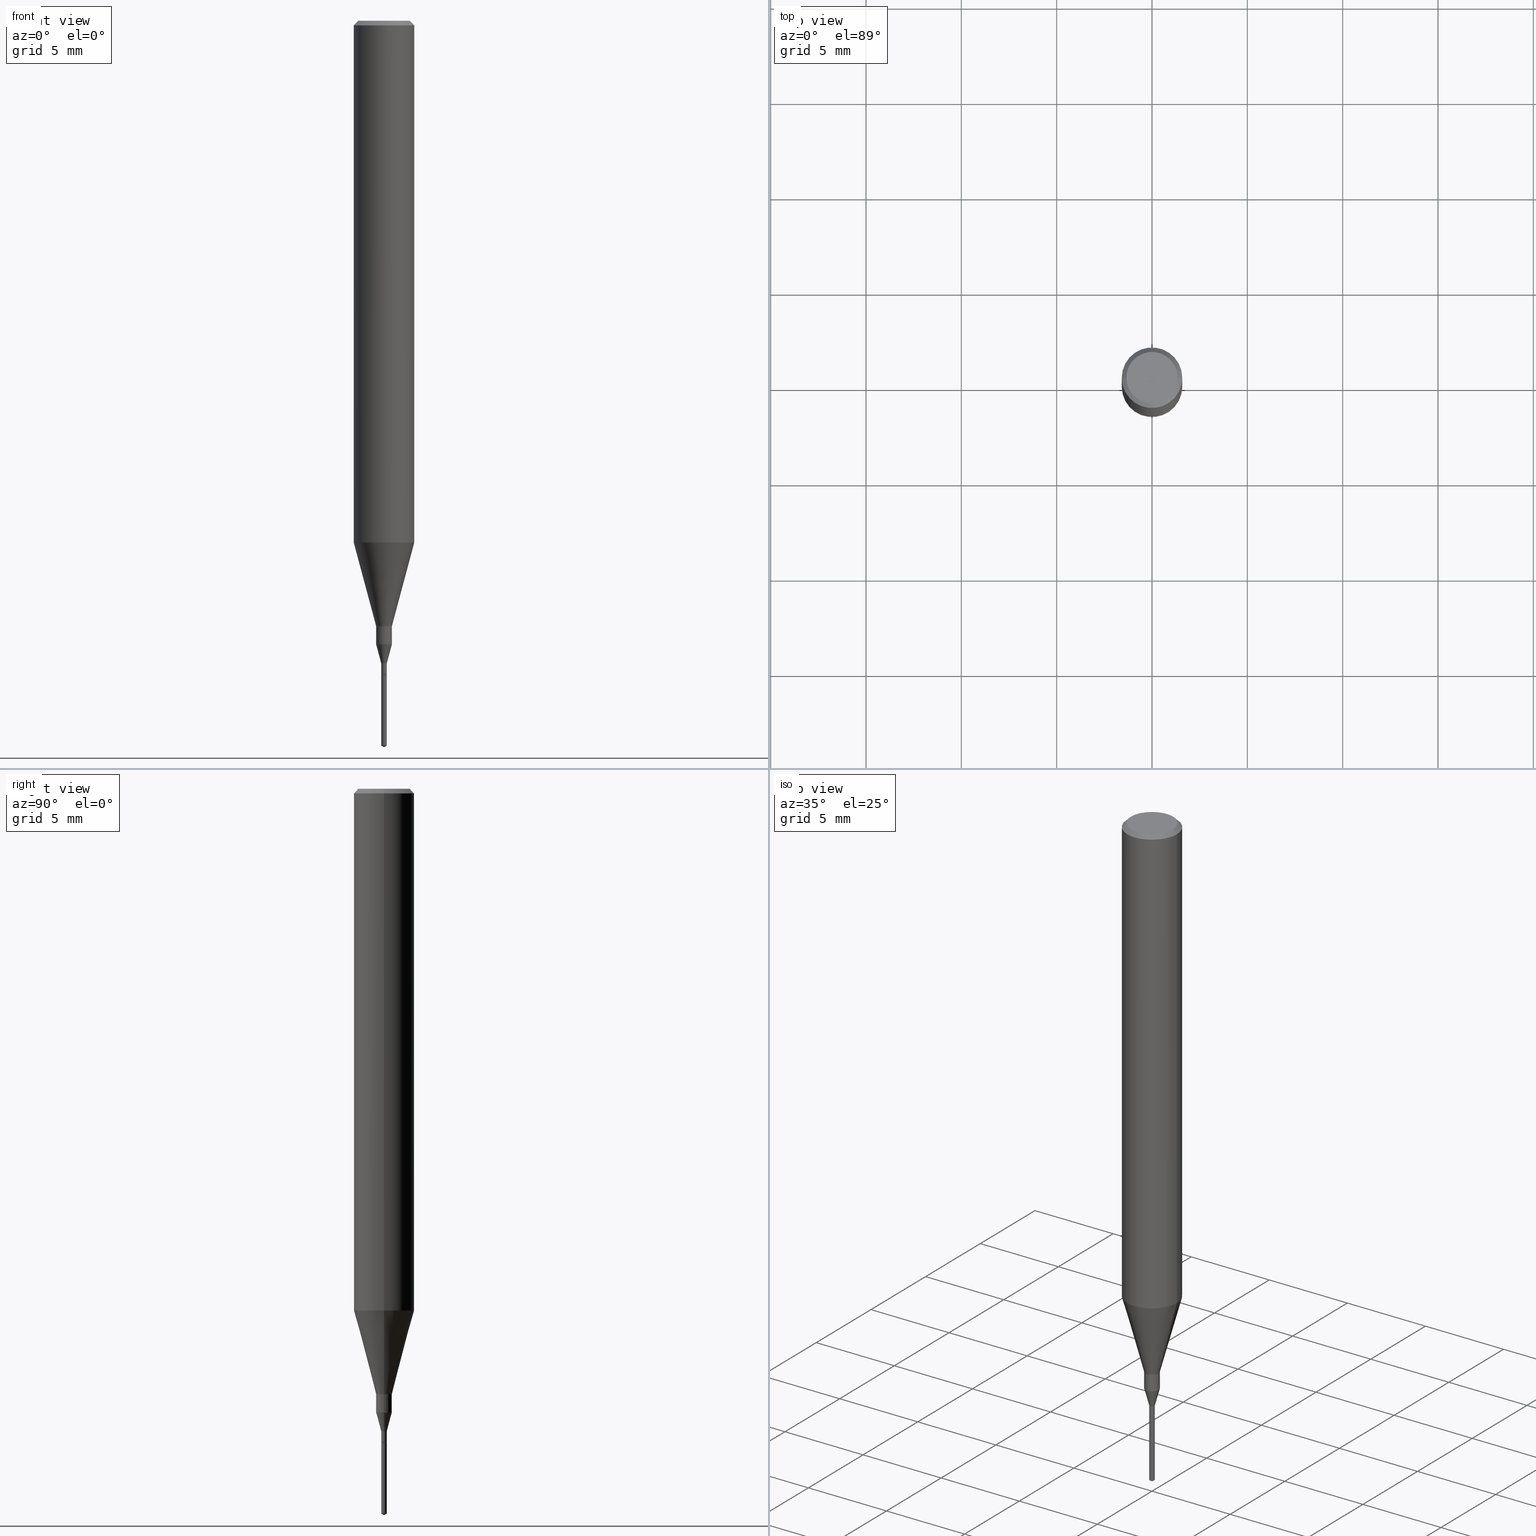
[diagram: canonical four-view strip — front | top / right | iso, engineering-drawing reading convention]
A machine part, canonical four-view strip (front | top / right | iso — engineering-drawing reading convention). The complete STEP part file that produces these views, byte-faithful:
ISO-10303-21;
HEADER;
FILE_DESCRIPTION (( 'STEP AP203' ),
    '1' );
FILE_NAME ('07264.STEP',
    '2024-04-19T13:30:32',
    ( '' ),
    ( '' ),
    'SwSTEP 2.0',
    'SolidWorks 2023',
    '' );
FILE_SCHEMA (( 'CONFIG_CONTROL_DESIGN' ));
ENDSEC;

DATA;
#1 = ORIENTED_EDGE ( 'NONE', *, *, #527, .F. ) ;
#2 = EDGE_CURVE ( 'NONE', #162, #6, #493, .T. ) ;
#3 = VERTEX_POINT ( 'NONE', #127 ) ;
#4 = ORIENTED_EDGE ( 'NONE', *, *, #167, .T. ) ;
#5 = CARTESIAN_POINT ( 'NONE',  ( 0.000000000000000000, 0.000000000000000000, 0.000000000000000000 ) ) ;
#6 = VERTEX_POINT ( 'NONE', #174 ) ;
#7 = AXIS2_PLACEMENT_3D ( 'NONE', #442, #207, #211 ) ;
#8 = ORIENTED_EDGE ( 'NONE', *, *, #316, .F. ) ;
#9 = CIRCLE ( 'NONE', #370, 0.06250000000000012490 ) ;
#10 = ORIENTED_EDGE ( 'NONE', *, *, #518, .T. ) ;
#11 = EDGE_CURVE ( 'NONE', #360, #513, #366, .T. ) ;
#12 = DIRECTION ( 'NONE',  ( -2.449828643397946418E-29, 3.485237803807878340E-15, 1.000000000000000000 ) ) ;
#13 = DIRECTION ( 'NONE',  ( -6.982962677686265133E-15, -1.000000000000000000, 0.000000000000000000 ) ) ;
#14 = ORIENTED_EDGE ( 'NONE', *, *, #11, .F. ) ;
#15 = LINE ( 'NONE', #55, #114 ) ;
#16 = CYLINDRICAL_SURFACE ( 'NONE', #485, 0.005750000000000004240 ) ;
#17 = AXIS2_PLACEMENT_3D ( 'NONE', #102, #12, #182 ) ;
#18 = VECTOR ( 'NONE', #330, 39.37007874015748143 ) ;
#19 = VERTEX_POINT ( 'NONE', #86 ) ;
#20 = DIRECTION ( 'NONE',  ( -2.449828643397946418E-29, 3.485237803807878340E-15, 1.000000000000000000 ) ) ;
#21 = EDGE_CURVE ( 'NONE', #88, #410, #15, .T. ) ;
#22 = PERSON_AND_ORGANIZATION_ROLE ( 'design_supplier' ) ;
#23 = CC_DESIGN_PERSON_AND_ORGANIZATION_ASSIGNMENT ( #563, #144, ( #409 ) ) ;
#24 = EDGE_CURVE ( 'NONE', #38, #53, #143, .T. ) ;
#25 = CALENDAR_DATE ( 2024, 19, 4 ) ;
#26 = ORIENTED_EDGE ( 'NONE', *, *, #24, .T. ) ;
#27 = DIRECTION ( 'NONE',  ( 0.2588190451025214611, 1.565188264969621573E-15, 0.9659258262890682012 ) ) ;
#28 = DIRECTION ( 'NONE',  ( -1.000000000000000000, 6.982962677686266711E-15, 0.000000000000000000 ) ) ;
#29 = CARTESIAN_POINT ( 'NONE',  ( 0.01624999999999999709, -1.134731435124018242E-16, 7.923787260668394963E-31 ) ) ;
#30 = VECTOR ( 'NONE', #577, 39.37007874015748143 ) ;
#31 = EDGE_LOOP ( 'NONE', ( #84, #100, #153, #91 ) ) ;
#32 = AXIS2_PLACEMENT_3D ( 'NONE', #96, #180, #139 ) ;
#33 = AXIS2_PLACEMENT_3D ( 'NONE', #313, #79, #450 ) ;
#34 = CARTESIAN_POINT ( 'NONE',  ( 3.301382888349935078E-29, -4.713499807438246596E-15, -1.350000000000000089 ) ) ;
#35 = ORIENTED_EDGE ( 'NONE', *, *, #24, .F. ) ;
#36 = ORIENTED_EDGE ( 'NONE', *, *, #328, .T. ) ;
#37 = DIRECTION ( 'NONE',  ( -2.445468806185136597E-29, 3.491481338843145583E-15, 1.000000000000000000 ) ) ;
#38 = VERTEX_POINT ( 'NONE', #189 ) ;
#39 = LOCAL_TIME ( 9, 30, 32.00000000000000000, #185 ) ;
#40 = CARTESIAN_POINT ( 'NONE',  ( -0.06250000000000000000, 4.037025298037369984E-16, -0.009375000000000063838 ) ) ;
#41 = ADVANCED_FACE ( 'NONE', ( #514 ), #546, .T. ) ;
#42 = EDGE_LOOP ( 'NONE', ( #415, #538, #220, #416 ) ) ;
#43 = LOCAL_TIME ( 9, 30, 32.00000000000000000, #282 ) ;
#44 = ORIENTED_EDGE ( 'NONE', *, *, #95, .F. ) ;
#45 = CARTESIAN_POINT ( 'NONE',  ( 0.005249999999999999459, -4.750160361496099748E-15, -1.350000000000000089 ) ) ;
#46 = DIRECTION ( 'NONE',  ( -2.445468806185136597E-29, 3.491481338843145583E-15, 1.000000000000000000 ) ) ;
#47 = EDGE_CURVE ( 'NONE', #19, #323, #570, .T. ) ;
#48 = VERTEX_POINT ( 'NONE', #235 ) ;
#49 = FACE_OUTER_BOUND ( 'NONE', #51, .T. ) ;
#50 = ORIENTED_EDGE ( 'NONE', *, *, #506, .T. ) ;
#51 = EDGE_LOOP ( 'NONE', ( #368, #149, #136, #376 ) ) ;
#52 = DIRECTION ( 'NONE',  ( -2.445468806185136597E-29, 3.491481338843145583E-15, 1.000000000000000000 ) ) ;
#53 = VERTEX_POINT ( 'NONE', #556 ) ;
#54 = ADVANCED_FACE ( 'NONE', ( #425 ), #561, .T. ) ;
#55 = CARTESIAN_POINT ( 'NONE',  ( -0.01625000000000000056, -4.380913491706305930E-15, -1.287813466520526973 ) ) ;
#56 = DIRECTION ( 'NONE',  ( -0.7071067811866251773, 7.493145998870633417E-15, 0.7071067811864697461 ) ) ;
#57 = DIRECTION ( 'NONE',  ( -2.445468806185136597E-29, 3.491481338843145583E-15, 1.000000000000000000 ) ) ;
#58 = ORIENTED_EDGE ( 'NONE', *, *, #319, .T. ) ;
#59 = CARTESIAN_POINT ( 'NONE',  ( -9.278108940561071411E-28, 1.319778012860802633E-13, 37.87007874015748143 ) ) ;
#60 = DATE_TIME_ROLE ( 'classification_date' ) ;
#61 = EDGE_CURVE ( 'NONE', #410, #48, #551, .T. ) ;
#62 = AXIS2_PLACEMENT_3D ( 'NONE', #267, #540, #28 ) ;
#63 = AXIS2_PLACEMENT_3D ( 'NONE', #476, #383, #521 ) ;
#64 = FACE_OUTER_BOUND ( 'NONE', #276, .T. ) ;
#65 = AXIS2_PLACEMENT_3D ( 'NONE', #140, #497, #83 ) ;
#66 = DIRECTION ( 'NONE',  ( -2.445468806185136597E-29, 3.491481338843145583E-15, 1.000000000000000000 ) ) ;
#67 = PERSON_AND_ORGANIZATION ( #200, #349 ) ;
#68 = CARTESIAN_POINT ( 'NONE',  ( 0.000000000000000000, 0.000000000000000000, 0.000000000000000000 ) ) ;
#69 = ORIENTED_EDGE ( 'NONE', *, *, #195, .F. ) ;
#70 = CC_DESIGN_PERSON_AND_ORGANIZATION_ASSIGNMENT ( #548, #22, ( #533 ) ) ;
#71 = DATE_AND_TIME ( #25, #39 ) ;
#72 = CARTESIAN_POINT ( 'NONE',  ( 3.301382888349935078E-29, -4.713499807438246596E-15, -1.350000000000000089 ) ) ;
#73 = ORIENTED_EDGE ( 'NONE', *, *, #467, .T. ) ;
#74 = DIRECTION ( 'NONE',  ( -6.982962677686266711E-15, -1.000000000000000000, 3.468864327941709388E-15 ) ) ;
#75 = ORIENTED_EDGE ( 'NONE', *, *, #141, .F. ) ;
#76 = AXIS2_PLACEMENT_3D ( 'NONE', #292, #108, #392 ) ;
#77 = ORIENTED_EDGE ( 'NONE', *, *, #295, .F. ) ;
#78 = CARTESIAN_POINT ( 'NONE',  ( -0.06250000000000006939, 4.440892098500631092E-16, -3.074334431409319267E-30 ) ) ;
#79 = DIRECTION ( 'NONE',  ( -2.445468806185136597E-29, 3.491481338843145583E-15, 1.000000000000000000 ) ) ;
#80 = DIRECTION ( 'NONE',  ( 1.000000000000000000, -6.982962677686205968E-15, 0.000000000000000000 ) ) ;
#81 = ADVANCED_FACE ( 'NONE', ( #287 ), #503, .T. ) ;
#82 = ORIENTED_EDGE ( 'NONE', *, *, #150, .T. ) ;
#83 = DIRECTION ( 'NONE',  ( 1.000000000000000000, -6.982962677686195713E-15, 0.000000000000000000 ) ) ;
#84 = ORIENTED_EDGE ( 'NONE', *, *, #2, .F. ) ;
#85 = DIRECTION ( 'NONE',  ( -2.445468806185136597E-29, 3.491481338843145583E-15, 1.000000000000000000 ) ) ;
#86 = CARTESIAN_POINT ( 'NONE',  ( -0.05312499999999999861, 3.873362110279099094E-16, -5.787680772773044021E-18 ) ) ;
#87 = VECTOR ( 'NONE', #541, 39.37007874015748143 ) ;
#88 = VERTEX_POINT ( 'NONE', #472 ) ;
#89 = ADVANCED_FACE ( 'NONE', ( #49 ), #239, .T. ) ;
#90 = ORIENTED_EDGE ( 'NONE', *, *, #580, .T. ) ;
#91 = ORIENTED_EDGE ( 'NONE', *, *, #432, .F. ) ;
#92 = VECTOR ( 'NONE', #545, 39.37007874015748143 ) ;
#93 = SECURITY_CLASSIFICATION_LEVEL ( 'unclassified' ) ;
#94 = APPROVAL ( #226, 'UNSPECIFIED' ) ;
#95 = EDGE_CURVE ( 'NONE', #38, #358, #147, .T. ) ;
#96 = CARTESIAN_POINT ( 'NONE',  ( 2.292627005798581061E-31, -3.273263755165471417E-17, -0.009375000000000063838 ) ) ;
#97 = CALENDAR_DATE ( 2024, 19, 4 ) ;
#98 = DIRECTION ( 'NONE',  ( 1.000000000000000000, -6.982962677686267499E-15, 4.876176775795936353E-29 ) ) ;
#99 = CIRCLE ( 'NONE', #520, 0.01624999999999999709 ) ;
#100 = ORIENTED_EDGE ( 'NONE', *, *, #295, .T. ) ;
#101 = AXIS2_PLACEMENT_3D ( 'NONE', #261, #219, #344 ) ;
#102 = CARTESIAN_POINT ( 'NONE',  ( 3.301382888349935078E-29, -4.713499807438246596E-15, -1.350000000000000089 ) ) ;
#103 = EDGE_CURVE ( 'NONE', #3, #583, #113, .T. ) ;
#104 = UNCERTAINTY_MEASURE_WITH_UNIT (LENGTH_MEASURE( 1.000000000000000082E-05 ), #353, 'distance_accuracy_value', 'NONE');
#105 = VECTOR ( 'NONE', #230, 39.37007874015748854 ) ;
#106 = ADVANCED_FACE ( 'NONE', ( #378 ), #559, .T. ) ;
#107 = AXIS2_PLACEMENT_3D ( 'NONE', #59, #567, #285 ) ;
#108 = DIRECTION ( 'NONE',  ( -2.445468806185136597E-29, 3.491481338843145583E-15, 1.000000000000000000 ) ) ;
#109 = DIRECTION ( 'NONE',  ( 1.000000000000000000, -6.982962677686264344E-15, 0.000000000000000000 ) ) ;
#110 = ORIENTED_EDGE ( 'NONE', *, *, #316, .T. ) ;
#111 = DIRECTION ( 'NONE',  ( -2.449828643397946418E-29, 3.485237803807878340E-15, 1.000000000000000000 ) ) ;
#112 = APPLICATION_PROTOCOL_DEFINITION ( 'international standard', 'config_control_design', 1994, #492 ) ;
#113 = CIRCLE ( 'NONE', #17, 0.005749999999999999903 ) ;
#114 = VECTOR ( 'NONE', #197, 39.37007874015748143 ) ;
#115 = CALENDAR_DATE ( 2024, 19, 4 ) ;
#116 = ORIENTED_EDGE ( 'NONE', *, *, #411, .F. ) ;
#117 = DIRECTION ( 'NONE',  ( 0.000000000000000000, 0.000000000000000000, 1.000000000000000000 ) ) ;
#118 = ADVANCED_FACE ( 'NONE', ( #210 ), #479, .T. ) ;
#119 = DIRECTION ( 'NONE',  ( -2.445468806185136597E-29, 3.491481338843145583E-15, 1.000000000000000000 ) ) ;
#120 = AXIS2_PLACEMENT_3D ( 'NONE', #163, #217, #80 ) ;
#121 = CARTESIAN_POINT ( 'NONE',  ( -4.015203539666301532E-17, -0.005750000000004714014, -1.350000000000000089 ) ) ;
#122 = DIRECTION ( 'NONE',  ( 1.000000000000000000, -6.982962677686266711E-15, 4.876176775795935793E-29 ) ) ;
#123 = AXIS2_PLACEMENT_3D ( 'NONE', #465, #387, #246 ) ;
#124 = APPROVAL_DATE_TIME ( #484, #542 ) ;
#125 = ADVANCED_FACE ( 'NONE', ( #345 ), #443, .T. ) ;
#126 = CARTESIAN_POINT ( 'NONE',  ( 0.01625000000000000056, -4.609849829779723792E-15, -1.287813466520526973 ) ) ;
#127 = CARTESIAN_POINT ( 'NONE',  ( 4.085620730624237424E-17, 0.005749999999995286659, -1.350000000000000089 ) ) ;
#128 = ORIENTED_EDGE ( 'NONE', *, *, #449, .F. ) ;
#129 = LINE ( 'NONE', #298, #335 ) ;
#130 = AXIS2_PLACEMENT_3D ( 'NONE', #305, #406, #584 ) ;
#131 = CARTESIAN_POINT ( 'NONE',  ( 0.01625000000000000056, -4.609849829779723792E-15, -1.287813466520526973 ) ) ;
#132 = CARTESIAN_POINT ( 'NONE',  ( 3.660393152917320875E-29, -5.224244160679966453E-15, -1.496545051440591578 ) ) ;
#133 = ORIENTED_EDGE ( 'NONE', *, *, #489, .F. ) ;
#134 = FACE_OUTER_BOUND ( 'NONE', #315, .T. ) ;
#135 = AXIS2_PLACEMENT_3D ( 'NONE', #579, #37, #494 ) ;
#136 = ORIENTED_EDGE ( 'NONE', *, *, #205, .F. ) ;
#137 = CARTESIAN_POINT ( 'NONE',  ( -0.01624999999999999709, 1.154631945610162595E-16, -7.993269521664220284E-31 ) ) ;
#138 = CIRCLE ( 'NONE', #101, 0.005749999999999999035 ) ;
#139 = DIRECTION ( 'NONE',  ( -1.000000000000000000, 6.982962677686266711E-15, 0.000000000000000000 ) ) ;
#140 = CARTESIAN_POINT ( 'NONE',  ( 3.300160153946842277E-29, -4.711754066768825092E-15, -1.349500000000000144 ) ) ;
#141 = EDGE_CURVE ( 'NONE', #513, #410, #454, .T. ) ;
#142 = EDGE_LOOP ( 'NONE', ( #128, #50, #82, #317 ) ) ;
#143 = LINE ( 'NONE', #248, #562 ) ;
#144 = PERSON_AND_ORGANIZATION_ROLE ( 'creator' ) ;
#145 = CIRCLE ( 'NONE', #565, 0.06250000000000012490 ) ;
#146 = CARTESIAN_POINT ( 'NONE',  ( 2.634730117954813298E-29, -3.761696332605275695E-15, -1.077392650149939346 ) ) ;
#147 = LINE ( 'NONE', #519, #501 ) ;
#148 = CIRCLE ( 'NONE', #310, 0.01625000000000000056 ) ;
#149 = ORIENTED_EDGE ( 'NONE', *, *, #237, .T. ) ;
#150 = EDGE_CURVE ( 'NONE', #193, #364, #234, .T. ) ;
#151 = CARTESIAN_POINT ( 'NONE',  ( -0.005249999999999999459, -4.676196313810840711E-15, -1.350000000000000089 ) ) ;
#152 = PRODUCT ( '07264', '07264', '', ( #303 ) ) ;
#153 = ORIENTED_EDGE ( 'NONE', *, *, #489, .T. ) ;
#154 = CONICAL_SURFACE ( 'NONE', #238, 0.01625000000000000056, 0.2617993877991522944 ) ;
#155 = DIRECTION ( 'NONE',  ( 1.000000000000000000, -6.982962677686266711E-15, 0.000000000000000000 ) ) ;
#156 = CARTESIAN_POINT ( 'NONE',  ( -0.005750000000000008576, -4.670897859462619098E-15, -1.349500000000000144 ) ) ;
#157 = CC_DESIGN_DATE_AND_TIME_ASSIGNMENT ( #71, #60, ( #554 ) ) ;
#158 = ORIENTED_EDGE ( 'NONE', *, *, #11, .T. ) ;
#159 = CARTESIAN_POINT ( 'NONE',  ( 3.149307660561095613E-29, -4.496376686267322115E-15, -1.287813466520526973 ) ) ;
#160 = FACE_OUTER_BOUND ( 'NONE', #268, .T. ) ;
#161 = DIRECTION ( 'NONE',  ( -2.445468806185136597E-29, 3.491481338843145583E-15, 1.000000000000000000 ) ) ;
#162 = VERTEX_POINT ( 'NONE', #178 ) ;
#163 = CARTESIAN_POINT ( 'NONE',  ( 3.245137105807676300E-29, -4.633195736644853487E-15, -1.326999999999999735 ) ) ;
#164 = LOCAL_TIME ( 9, 30, 32.00000000000000000, #557 ) ;
#165 = EDGE_CURVE ( 'NONE', #48, #547, #560, .T. ) ;
#166 = CARTESIAN_POINT ( 'NONE',  ( 3.301382888349935078E-29, -4.713499807438246596E-15, -1.350000000000000089 ) ) ;
#167 = EDGE_CURVE ( 'NONE', #544, #364, #481, .T. ) ;
#168 = ORIENTED_EDGE ( 'NONE', *, *, #279, .F. ) ;
#169 = FACE_OUTER_BOUND ( 'NONE', #228, .T. ) ;
#170 = ORIENTED_EDGE ( 'NONE', *, *, #237, .F. ) ;
#171 = CC_DESIGN_SECURITY_CLASSIFICATION ( #554, ( #533 ) ) ;
#172 = AXIS2_PLACEMENT_3D ( 'NONE', #543, #227, #505 ) ;
#173 = EDGE_LOOP ( 'NONE', ( #535, #4, #36, #283 ) ) ;
#174 = CARTESIAN_POINT ( 'NONE',  ( -0.06250000000000000000, -1.453125275228401137E-15, -0.009375000000000063838 ) ) ;
#175 = DIRECTION ( 'NONE',  ( 1.000000000000000000, -6.982962677686205968E-15, 0.000000000000000000 ) ) ;
#176 = ADVANCED_FACE ( 'NONE', ( #549 ), #281, .F. ) ;
#177 = AXIS2_PLACEMENT_3D ( 'NONE', #581, #161, #175 ) ;
#178 = CARTESIAN_POINT ( 'NONE',  ( -0.06250000000000012490, -3.317607122755211895E-15, -1.077392650149939346 ) ) ;
#179 = CIRCLE ( 'NONE', #76, 0.06250000000000000000 ) ;
#180 = DIRECTION ( 'NONE',  ( 2.445468806185136597E-29, -3.491481338843145583E-15, -1.000000000000000000 ) ) ;
#181 = PRODUCT_RELATED_PRODUCT_CATEGORY ( 'detail', '', ( #152 ) ) ;
#182 = DIRECTION ( 'NONE',  ( -6.982962677686265133E-15, -1.000000000000000000, 0.000000000000000000 ) ) ;
#183 = EDGE_CURVE ( 'NONE', #358, #53, #223, .T. ) ;
#184 = APPROVAL_PERSON_ORGANIZATION ( #523, #542, #397 ) ;
#185 = COORDINATED_UNIVERSAL_TIME_OFFSET ( 5, 0, .BEHIND. ) ;
#186 = ORIENTED_EDGE ( 'NONE', *, *, #467, .F. ) ;
#187 = AXIS2_PLACEMENT_3D ( 'NONE', #284, #571, #340 ) ;
#188 = AXIS2_PLACEMENT_3D ( 'NONE', #72, #119, #307 ) ;
#189 = CARTESIAN_POINT ( 'NONE',  ( 3.674742965096920047E-29, -5.227856705711817904E-15, -1.500000000000000222 ) ) ;
#190 = AXIS2_PLACEMENT_3D ( 'NONE', #166, #529, #539 ) ;
#191 = CYLINDRICAL_SURFACE ( 'NONE', #388, 0.01624999999999999709 ) ;
#192 = CALENDAR_DATE ( 2024, 19, 4 ) ;
#193 = VERTEX_POINT ( 'NONE', #379 ) ;
#194 = DIRECTION ( 'NONE',  ( -6.982962677686265133E-15, -1.000000000000000000, 0.000000000000000000 ) ) ;
#195 = EDGE_CURVE ( 'NONE', #364, #544, #255, .T. ) ;
#196 = DIRECTION ( 'NONE',  ( 1.000000000000000000, -6.982962677686267499E-15, 4.876176775795935793E-29 ) ) ;
#197 = DIRECTION ( 'NONE',  ( -0.2588190451025235150, 5.211531920934562875E-15, 0.9659258262890674240 ) ) ;
#198 = DIRECTION ( 'NONE',  ( -2.445468806185136597E-29, 3.491481338843145583E-15, 1.000000000000000000 ) ) ;
#199 = VECTOR ( 'NONE', #56, 39.37007874015748854 ) ;
#200 = PERSON ( 'UNSPECIFIED', 'UNSPECIFIED', 'UNSPECIFIED', ('UNSPECIFIED'), ('UNSPECIFIED'), ('UNSPECIFIED') ) ;
#201 = DIRECTION ( 'NONE',  ( -2.445468806185136597E-29, 3.491481338843145583E-15, 1.000000000000000000 ) ) ;
#202 = DIRECTION ( 'NONE',  ( -2.449828643397946418E-29, 3.485237803807878340E-15, 1.000000000000000000 ) ) ;
#203 = ADVANCED_FACE ( 'NONE', ( #271 ), #478, .T. ) ;
#204 = APPROVAL_STATUS ( 'not_yet_approved' ) ;
#205 = EDGE_CURVE ( 'NONE', #583, #3, #296, .T. ) ;
#206 = ORIENTED_EDGE ( 'NONE', *, *, #21, .F. ) ;
#207 = DIRECTION ( 'NONE',  ( -2.438088387897960049E-29, 3.491481338843145188E-15, 1.000000000000000000 ) ) ;
#208 = PERSON_AND_ORGANIZATION ( #200, #349 ) ;
#209 = CARTESIAN_POINT ( 'NONE',  ( -0.01625000000000000056, -4.380913491706305930E-15, -1.287813466520526973 ) ) ;
#210 = FACE_OUTER_BOUND ( 'NONE', #389, .T. ) ;
#211 = DIRECTION ( 'NONE',  ( 1.000000000000000000, -6.982962677686265922E-15, 4.876176775795935793E-29 ) ) ;
#212 = EDGE_LOOP ( 'NONE', ( #286, #590, #456, #270 ) ) ;
#213 = CARTESIAN_POINT ( 'NONE',  ( -4.015203539665941614E-17, -0.005750000000005222288, -1.496545051440591578 ) ) ;
#214 = EDGE_CURVE ( 'NONE', #323, #550, #338, .T. ) ;
#215 = FACE_OUTER_BOUND ( 'NONE', #587, .T. ) ;
#216 = ORIENTED_EDGE ( 'NONE', *, *, #256, .F. ) ;
#217 = DIRECTION ( 'NONE',  ( -2.445468806185136597E-29, 3.491481338843145583E-15, 1.000000000000000000 ) ) ;
#218 = ORIENTED_EDGE ( 'NONE', *, *, #372, .T. ) ;
#219 = DIRECTION ( 'NONE',  ( -2.449828643397946418E-29, 3.485237803807878340E-15, 1.000000000000000000 ) ) ;
#220 = ORIENTED_EDGE ( 'NONE', *, *, #532, .T. ) ;
#221 = AXIS2_PLACEMENT_3D ( 'NONE', #477, #202, #74 ) ;
#222 = LOCAL_TIME ( 9, 30, 32.00000000000000000, #572 ) ;
#223 = CIRCLE ( 'NONE', #300, 0.005749999999999999035 ) ;
#224 = CC_DESIGN_PERSON_AND_ORGANIZATION_ASSIGNMENT ( #208, #299, ( #152 ) ) ;
#225 = CIRCLE ( 'NONE', #304, 0.005249999999999999459 ) ;
#226 = APPROVAL_STATUS ( 'not_yet_approved' ) ;
#227 = DIRECTION ( 'NONE',  ( 2.438088387897960049E-29, -3.491481338843145188E-15, -1.000000000000000000 ) ) ;
#228 = EDGE_LOOP ( 'NONE', ( #1, #380, #110, #77 ) ) ;
#229 = LINE ( 'NONE', #309, #320 ) ;
#230 = DIRECTION ( 'NONE',  ( 0.7071067811866251773, -2.468850131083070771E-15, 0.7071067811864697461 ) ) ;
#231 = AXIS2_PLACEMENT_3D ( 'NONE', #68, #318, #122 ) ;
#232 = CARTESIAN_POINT ( 'NONE',  ( 3.300160153946842277E-29, -4.711754066768825092E-15, -1.349500000000000144 ) ) ;
#233 = ORIENTED_EDGE ( 'NONE', *, *, #214, .T. ) ;
#234 = LINE ( 'NONE', #45, #105 ) ;
#235 = CARTESIAN_POINT ( 'NONE',  ( -0.01624999999999999709, -4.314900985349611108E-15, -1.250000000000000000 ) ) ;
#236 = AXIS2_PLACEMENT_3D ( 'NONE', #351, #117, #259 ) ;
#237 = EDGE_CURVE ( 'NONE', #53, #3, #346, .T. ) ;
#238 = AXIS2_PLACEMENT_3D ( 'NONE', #511, #201, #390 ) ;
#239 = CYLINDRICAL_SURFACE ( 'NONE', #253, 0.005749999999999999903 ) ;
#240 = DIRECTION ( 'NONE',  ( -2.449828643397946418E-29, 3.485237803807878340E-15, 1.000000000000000000 ) ) ;
#241 = ORIENTED_EDGE ( 'NONE', *, *, #459, .T. ) ;
#242 = PERSON_AND_ORGANIZATION ( #200, #349 ) ;
#243 = DIRECTION ( 'NONE',  ( -2.445468806185136597E-29, 3.491481338843145583E-15, 1.000000000000000000 ) ) ;
#244 = EDGE_LOOP ( 'NONE', ( #206, #218, #158, #168 ) ) ;
#245 = AXIS2_PLACEMENT_3D ( 'NONE', #5, #405, #258 ) ;
#246 = DIRECTION ( 'NONE',  ( -6.982962677686265133E-15, -1.000000000000000000, 0.000000000000000000 ) ) ;
#247 = ORIENTED_EDGE ( 'NONE', *, *, #95, .T. ) ;
#248 = CARTESIAN_POINT ( 'NONE',  ( 3.674846187787069844E-29, -5.227856705711817904E-15, -1.500000000000000222 ) ) ;
#249 = DESIGN_CONTEXT ( 'detailed design', #363, 'design' ) ;
#250 = DATE_AND_TIME ( #192, #43 ) ;
#251 = DIRECTION ( 'NONE',  ( 1.000000000000000000, -6.982962677686264344E-15, 0.000000000000000000 ) ) ;
#252 = FACE_OUTER_BOUND ( 'NONE', #446, .T. ) ;
#253 = AXIS2_PLACEMENT_3D ( 'NONE', #430, #20, #194 ) ;
#254 = LINE ( 'NONE', #151, #199 ) ;
#255 = CIRCLE ( 'NONE', #65, 0.005750000000000008576 ) ;
#256 = EDGE_CURVE ( 'NONE', #547, #48, #99, .T. ) ;
#257 = APPROVAL_PERSON_ORGANIZATION ( #67, #526, #359 ) ;
#258 = DIRECTION ( 'NONE',  ( 1.000000000000000000, -6.982962677686266711E-15, 4.876176775795935793E-29 ) ) ;
#259 = DIRECTION ( 'NONE',  ( 1.000000000000000000, 0.000000000000000000, 0.000000000000000000 ) ) ;
#260 = CARTESIAN_POINT ( 'NONE',  ( 4.085620730623876890E-17, 0.005749999999995286659, -1.350000000000000089 ) ) ;
#261 = CARTESIAN_POINT ( 'NONE',  ( 3.660393152917320875E-29, -5.224244160679966453E-15, -1.496545051440591578 ) ) ;
#262 = CIRCLE ( 'NONE', #120, 0.005749999999999999903 ) ;
#263 = CARTESIAN_POINT ( 'NONE',  ( 0.06250000000000000000, -4.615137624123753937E-16, -0.009375000000000063838 ) ) ;
#264 = ADVANCED_FACE ( 'NONE', ( #134 ), #480, .F. ) ;
#265 = LINE ( 'NONE', #40, #394 ) ;
#266 = CC_DESIGN_PERSON_AND_ORGANIZATION_ASSIGNMENT ( #280, #466, ( #554 ) ) ;
#267 = CARTESIAN_POINT ( 'NONE',  ( 2.292627005798581061E-31, -3.273263755165471417E-17, -0.009375000000000063838 ) ) ;
#268 = EDGE_LOOP ( 'NONE', ( #241, #382, #354, #133 ) ) ;
#269 = DIRECTION ( 'NONE',  ( -0.7071067811865454633, 2.468850131082235367E-15, -0.7071067811865495711 ) ) ;
#270 = ORIENTED_EDGE ( 'NONE', *, *, #328, .F. ) ;
#271 = FACE_OUTER_BOUND ( 'NONE', #142, .T. ) ;
#272 = EDGE_CURVE ( 'NONE', #544, #88, #129, .T. ) ;
#273 = ORIENTED_EDGE ( 'NONE', *, *, #527, .T. ) ;
#274 = AXIS2_PLACEMENT_3D ( 'NONE', #333, #377, #509 ) ;
#275 = CARTESIAN_POINT ( 'NONE',  ( 0.05312499999999999861, -4.129888592719939842E-16, -5.787680772767651417E-18 ) ) ;
#276 = EDGE_LOOP ( 'NONE', ( #35, #247, #537 ) ) ;
#277 = CALENDAR_DATE ( 2024, 19, 4 ) ;
#278 = ORIENTED_EDGE ( 'NONE', *, *, #183, .F. ) ;
#279 = EDGE_CURVE ( 'NONE', #410, #513, #148, .T. ) ;
#280 = PERSON_AND_ORGANIZATION ( #200, #349 ) ;
#281 = PLANE ( 'NONE',  #172 ) ;
#282 = COORDINATED_UNIVERSAL_TIME_OFFSET ( 5, 0, .BEHIND. ) ;
#283 = ORIENTED_EDGE ( 'NONE', *, *, #372, .F. ) ;
#284 = CARTESIAN_POINT ( 'NONE',  ( 3.301382888349935078E-29, -4.713499807438246596E-15, -1.350000000000000089 ) ) ;
#285 = DIRECTION ( 'NONE',  ( -6.982962677686266711E-15, -1.000000000000000000, 3.468864327941709388E-15 ) ) ;
#286 = ORIENTED_EDGE ( 'NONE', *, *, #195, .T. ) ;
#287 = FACE_OUTER_BOUND ( 'NONE', #361, .T. ) ;
#288 = DATE_AND_TIME ( #97, #337 ) ;
#289 = FACE_OUTER_BOUND ( 'NONE', #461, .T. ) ;
#290 = VECTOR ( 'NONE', #451, 39.37007874015747433 ) ;
#291 = CC_DESIGN_APPROVAL ( #542, ( #554 ) ) ;
#292 = CARTESIAN_POINT ( 'NONE',  ( 2.292627005798581061E-31, -3.273263755165471417E-17, -0.009375000000000063838 ) ) ;
#293 = FACE_OUTER_BOUND ( 'NONE', #212, .T. ) ;
#294 = CC_DESIGN_DATE_AND_TIME_ASSIGNMENT ( #250, #391, ( #409 ) ) ;
#295 = EDGE_CURVE ( 'NONE', #162, #463, #9, .T. ) ;
#296 = CIRCLE ( 'NONE', #63, 0.005749999999999999903 ) ;
#297 = VECTOR ( 'NONE', #111, 39.37007874015748143 ) ;
#298 = CARTESIAN_POINT ( 'NONE',  ( -0.005750000000000004240, 4.085620730620579081E-17, -2.828387676896572552E-31 ) ) ;
#299 = PERSON_AND_ORGANIZATION_ROLE ( 'design_owner' ) ;
#300 = AXIS2_PLACEMENT_3D ( 'NONE', #132, #240, #13 ) ;
#301 = CC_DESIGN_APPROVAL ( #526, ( #409 ) ) ;
#302 = DIRECTION ( 'NONE',  ( -2.445468806185136597E-29, 3.491481338843145583E-15, 1.000000000000000000 ) ) ;
#303 = MECHANICAL_CONTEXT ( 'NONE', #492, 'mechanical' ) ;
#304 = AXIS2_PLACEMENT_3D ( 'NONE', #336, #243, #398 ) ;
#305 = CARTESIAN_POINT ( 'NONE',  ( 2.634730117954813298E-29, -3.761696332605275695E-15, -1.077392650149939346 ) ) ;
#306 = ADVANCED_FACE ( 'NONE', ( #160 ), #322, .T. ) ;
#307 = DIRECTION ( 'NONE',  ( 1.000000000000000000, -6.982962677686287221E-15, 0.000000000000000000 ) ) ;
#308 = ORIENTED_EDGE ( 'NONE', *, *, #103, .T. ) ;
#309 = CARTESIAN_POINT ( 'NONE',  ( -4.015203539666301532E-17, -0.005750000000004714014, -1.350000000000000089 ) ) ;
#310 = AXIS2_PLACEMENT_3D ( 'NONE', #403, #85, #324 ) ;
#311 = VECTOR ( 'NONE', #400, 39.37007874015748143 ) ;
#312 = SHAPE_DEFINITION_REPRESENTATION ( #342, #434 ) ;
#313 = CARTESIAN_POINT ( 'NONE',  ( 3.149307660561095613E-29, -4.496376686267322115E-15, -1.287813466520526973 ) ) ;
#314 = APPLICATION_PROTOCOL_DEFINITION ( 'international standard', 'config_control_design', 1994, #363 ) ;
#315 = EDGE_LOOP ( 'NONE', ( #186, #455 ) ) ;
#316 = EDGE_CURVE ( 'NONE', #547, #463, #435, .T. ) ;
#317 = ORIENTED_EDGE ( 'NONE', *, *, #167, .F. ) ;
#318 = DIRECTION ( 'NONE',  ( -2.445468806185136597E-29, 3.491481338843145583E-15, 1.000000000000000000 ) ) ;
#319 = EDGE_CURVE ( 'NONE', #360, #88, #401, .T. ) ;
#320 = VECTOR ( 'NONE', #365, 39.37007874015748143 ) ;
#321 = ORIENTED_EDGE ( 'NONE', *, *, #165, .F. ) ;
#322 = CYLINDRICAL_SURFACE ( 'NONE', #245, 0.06250000000000006939 ) ;
#323 = VERTEX_POINT ( 'NONE', #275 ) ;
#324 = DIRECTION ( 'NONE',  ( 1.000000000000000000, -6.982962677686258033E-15, 0.000000000000000000 ) ) ;
#325 = EDGE_LOOP ( 'NONE', ( #496, #564, #413, #321 ) ) ;
#326 = CARTESIAN_POINT ( 'NONE',  ( 3.056836007731421306E-29, -4.364351673553932471E-15, -1.250000000000000000 ) ) ;
#327 = DIRECTION ( 'NONE',  ( 1.000000000000000000, -6.982962677686266711E-15, 4.875930095424100059E-29 ) ) ;
#328 = EDGE_CURVE ( 'NONE', #364, #360, #457, .T. ) ;
#329 = EDGE_LOOP ( 'NONE', ( #73, #439, #69, #418 ) ) ;
#330 = DIRECTION ( 'NONE',  ( -2.445468806185136877E-29, 3.491481338843145188E-15, 1.000000000000000000 ) ) ;
#331 = AXIS2_PLACEMENT_3D ( 'NONE', #429, #57, #196 ) ;
#332 = COORDINATED_UNIVERSAL_TIME_OFFSET ( 5, 0, .BEHIND. ) ;
#333 = CARTESIAN_POINT ( 'NONE',  ( 0.000000000000000000, 0.000000000000000000, 0.000000000000000000 ) ) ;
#334 = DIRECTION ( 'NONE',  ( -2.445468806185136597E-29, 3.491481338843145583E-15, 1.000000000000000000 ) ) ;
#335 = VECTOR ( 'NONE', #499, 39.37007874015748143 ) ;
#336 = CARTESIAN_POINT ( 'NONE',  ( 3.301382888349935078E-29, -4.713499807438246596E-15, -1.350000000000000089 ) ) ;
#337 = LOCAL_TIME ( 9, 30, 32.00000000000000000, #332 ) ;
#338 = LINE ( 'NONE', #263, #498 ) ;
#339 = EDGE_CURVE ( 'NONE', #358, #583, #229, .T. ) ;
#340 = DIRECTION ( 'NONE',  ( 1.000000000000000000, -6.982962677686287221E-15, 0.000000000000000000 ) ) ;
#341 = CARTESIAN_POINT ( 'NONE',  ( 2.634730117954813298E-29, -3.761696332605275695E-15, -1.077392650149939346 ) ) ;
#342 = PRODUCT_DEFINITION_SHAPE ( 'NONE', 'NONE',  #409 ) ;
#343 = ORIENTED_EDGE ( 'NONE', *, *, #47, .T. ) ;
#344 = DIRECTION ( 'NONE',  ( -6.982962677686265133E-15, -1.000000000000000000, 0.000000000000000000 ) ) ;
#345 = FACE_OUTER_BOUND ( 'NONE', #329, .T. ) ;
#346 = LINE ( 'NONE', #260, #297 ) ;
#347 = DIRECTION ( 'NONE',  ( 6.982962677686265922E-15, 1.000000000000000000, -3.485237803807878340E-15 ) ) ;
#348 = CLOSED_SHELL ( 'NONE', ( #89, #118, #428, #81, #573 ) ) ;
#349 = ORGANIZATION ( 'UNSPECIFIED', 'UNSPECIFIED', '' ) ;
#350 = CARTESIAN_POINT ( 'NONE',  ( 0.06250000000000012490, -4.198131499960668153E-15, -1.077392650149939346 ) ) ;
#351 = CARTESIAN_POINT ( 'NONE',  ( 0.000000000000000000, 0.000000000000000000, 0.000000000000000000 ) ) ;
#352 = DIRECTION ( 'NONE',  ( 1.000000000000000000, -6.982962677686288799E-15, 0.000000000000000000 ) ) ;
#353 =( CONVERSION_BASED_UNIT ( 'INCH', #486 ) LENGTH_UNIT ( ) NAMED_UNIT ( #464 ) );
#354 = ORIENTED_EDGE ( 'NONE', *, *, #420, .F. ) ;
#355 = FACE_OUTER_BOUND ( 'NONE', #427, .T. ) ;
#356 = APPROVAL_PERSON_ORGANIZATION ( #524, #94, #504 ) ;
#357 = VECTOR ( 'NONE', #27, 39.37007874015747433 ) ;
#358 = VERTEX_POINT ( 'NONE', #213 ) ;
#359 = APPROVAL_ROLE ( '' ) ;
#360 = VERTEX_POINT ( 'NONE', #437 ) ;
#361 = EDGE_LOOP ( 'NONE', ( #170, #90, #491, #469 ) ) ;
#362 = ADVANCED_FACE ( 'NONE', ( #169 ), #553, .T. ) ;
#363 = APPLICATION_CONTEXT ( 'configuration controlled 3d designs of mechanical parts and assemblies' ) ;
#364 = VERTEX_POINT ( 'NONE', #408 ) ;
#365 = DIRECTION ( 'NONE',  ( -2.449828643397946418E-29, 3.485237803807878340E-15, 1.000000000000000000 ) ) ;
#366 = LINE ( 'NONE', #131, #384 ) ;
#367 = DIRECTION ( 'NONE',  ( -2.445468806185136597E-29, 3.491481338843145583E-15, 1.000000000000000000 ) ) ;
#368 = ORIENTED_EDGE ( 'NONE', *, *, #183, .T. ) ;
#369 = CARTESIAN_POINT ( 'NONE',  ( 0.005750000000000004240, -4.015203539669606736E-17, 2.803801646082665218E-31 ) ) ;
#370 = AXIS2_PLACEMENT_3D ( 'NONE', #419, #66, #578 ) ;
#371 = MANIFOLD_SOLID_BREP ( 'Body-Move/Copy2[1]', #348 ) ;
#372 = EDGE_CURVE ( 'NONE', #88, #360, #262, .T. ) ;
#373 = PERSON_AND_ORGANIZATION_ROLE ( 'creator' ) ;
#374 = ADVANCED_FACE ( 'NONE', ( #355 ), #440, .T. ) ;
#375 = AXIS2_PLACEMENT_3D ( 'NONE', #452, #334, #155 ) ;
#376 = ORIENTED_EDGE ( 'NONE', *, *, #339, .F. ) ;
#377 = DIRECTION ( 'NONE',  ( -2.445468806185136597E-29, 3.491481338843145583E-15, 1.000000000000000000 ) ) ;
#378 = FACE_OUTER_BOUND ( 'NONE', #173, .T. ) ;
#379 = CARTESIAN_POINT ( 'NONE',  ( 0.005249999999999999459, -4.750160361496099748E-15, -1.350000000000000089 ) ) ;
#380 = ORIENTED_EDGE ( 'NONE', *, *, #165, .T. ) ;
#381 = CARTESIAN_POINT ( 'NONE',  ( 1.415359278996747967E-46, -2.020757941330909984E-32, -5.787680772770392401E-18 ) ) ;
#382 = ORIENTED_EDGE ( 'NONE', *, *, #2, .T. ) ;
#383 = DIRECTION ( 'NONE',  ( -2.449828643397946418E-29, 3.485237803807878340E-15, 1.000000000000000000 ) ) ;
#384 = VECTOR ( 'NONE', #500, 39.37007874015748143 ) ;
#385 = ORIENTED_EDGE ( 'NONE', *, *, #459, .F. ) ;
#386 = MANIFOLD_SOLID_BREP ( 'Body-Move/Copy2[2]', #458 ) ;
#387 = DIRECTION ( 'NONE',  ( -2.449828643397946418E-29, 3.485237803807878340E-15, 1.000000000000000000 ) ) ;
#388 = AXIS2_PLACEMENT_3D ( 'NONE', #516, #433, #98 ) ;
#389 = EDGE_LOOP ( 'NONE', ( #44, #26, #278 ) ) ;
#390 = DIRECTION ( 'NONE',  ( 1.000000000000000000, -6.982962677686258033E-15, 0.000000000000000000 ) ) ;
#391 = DATE_TIME_ROLE ( 'creation_date' ) ;
#392 = DIRECTION ( 'NONE',  ( 1.000000000000000000, -6.982962677686266711E-15, 0.000000000000000000 ) ) ;
#393 = ADVANCED_FACE ( 'NONE', ( #487 ), #495, .T. ) ;
#394 = VECTOR ( 'NONE', #269, 39.37007874015748143 ) ;
#395 = AXIS2_PLACEMENT_3D ( 'NONE', #381, #568, #327 ) ;
#396 = CC_DESIGN_PERSON_AND_ORGANIZATION_ASSIGNMENT ( #242, #373, ( #533 ) ) ;
#397 = APPROVAL_ROLE ( '' ) ;
#398 = DIRECTION ( 'NONE',  ( 1.000000000000000000, -6.982962677686287221E-15, 0.000000000000000000 ) ) ;
#399 = ORIENTED_EDGE ( 'NONE', *, *, #205, .T. ) ;
#400 = DIRECTION ( 'NONE',  ( -2.445468806185136877E-29, 3.491481338843145188E-15, 1.000000000000000000 ) ) ;
#401 = CIRCLE ( 'NONE', #177, 0.005749999999999999903 ) ;
#402 = CIRCLE ( 'NONE', #135, 0.05312499999999999861 ) ;
#403 = CARTESIAN_POINT ( 'NONE',  ( 3.149307660561095613E-29, -4.496376686267322115E-15, -1.287813466520526973 ) ) ;
#404 =( NAMED_UNIT ( * ) PLANE_ANGLE_UNIT ( ) SI_UNIT ( $, .RADIAN. ) );
#405 = DIRECTION ( 'NONE',  ( -2.445468806185136597E-29, 3.491481338843145583E-15, 1.000000000000000000 ) ) ;
#406 = DIRECTION ( 'NONE',  ( -2.445468806185136597E-29, 3.491481338843145583E-15, 1.000000000000000000 ) ) ;
#407 = DIRECTION ( 'NONE',  ( 2.449828643397946138E-29, -3.485237803807878340E-15, -1.000000000000000000 ) ) ;
#408 = CARTESIAN_POINT ( 'NONE',  ( 0.005750000000000008576, -4.751906102165522041E-15, -1.349500000000000144 ) ) ;
#409 = PRODUCT_DEFINITION ( 'UNKNOWN', '', #533, #249 ) ;
#410 = VERTEX_POINT ( 'NONE', #209 ) ;
#411 = EDGE_CURVE ( 'NONE', #513, #547, #490, .T. ) ;
#412 =( NAMED_UNIT ( * ) SI_UNIT ( $, .STERADIAN. ) SOLID_ANGLE_UNIT ( ) );
#413 = ORIENTED_EDGE ( 'NONE', *, *, #411, .T. ) ;
#414 = AXIS2_PLACEMENT_3D ( 'NONE', #326, #367, #460 ) ;
#415 = ORIENTED_EDGE ( 'NONE', *, *, #214, .F. ) ;
#416 = ORIENTED_EDGE ( 'NONE', *, *, #432, .T. ) ;
#417 = CONICAL_SURFACE ( 'NONE', #424, 0.06250000000000012490, 0.2617993877991501295 ) ;
#418 = ORIENTED_EDGE ( 'NONE', *, *, #150, .F. ) ;
#419 = CARTESIAN_POINT ( 'NONE',  ( 2.634730117954813298E-29, -3.761696332605275695E-15, -1.077392650149939346 ) ) ;
#420 = EDGE_CURVE ( 'NONE', #550, #6, #483, .T. ) ;
#421 = ORIENTED_EDGE ( 'NONE', *, *, #532, .F. ) ;
#422 = APPROVAL_DATE_TIME ( #510, #94 ) ;
#423 = DIRECTION ( 'NONE',  ( 1.000000000000000000, -6.982962677686195713E-15, 0.000000000000000000 ) ) ;
#424 = AXIS2_PLACEMENT_3D ( 'NONE', #341, #525, #109 ) ;
#425 = FACE_OUTER_BOUND ( 'NONE', #325, .T. ) ;
#426 = DIRECTION ( 'NONE',  ( -5.985567269335891581E-15, -0.8571673007021030077, 0.5150380749100696987 ) ) ;
#427 = EDGE_LOOP ( 'NONE', ( #58, #589, #75, #14 ) ) ;
#428 = ADVANCED_FACE ( 'NONE', ( #64 ), #512, .T. ) ;
#429 = CARTESIAN_POINT ( 'NONE',  ( 0.000000000000000000, 0.000000000000000000, 0.000000000000000000 ) ) ;
#430 = CARTESIAN_POINT ( 'NONE',  ( 3.301382888349935078E-29, -4.713499807438246596E-15, -1.350000000000000089 ) ) ;
#431 = CARTESIAN_POINT ( 'NONE',  ( 0.06250000000000012490, -4.198131499960668153E-15, -1.077392650149939346 ) ) ;
#432 = EDGE_CURVE ( 'NONE', #6, #550, #179, .T. ) ;
#433 = DIRECTION ( 'NONE',  ( -2.445468806185136597E-29, 3.491481338843145583E-15, 1.000000000000000000 ) ) ;
#434 = ADVANCED_BREP_SHAPE_REPRESENTATION ( '07264', ( #371, #386, #236 ), #555 ) ;
#435 = LINE ( 'NONE', #350, #357 ) ;
#436 = CARTESIAN_POINT ( 'NONE',  ( -0.06250000000000012490, -3.317607122755211895E-15, -1.077392650149939346 ) ) ;
#437 = CARTESIAN_POINT ( 'NONE',  ( 0.005749999999999999903, -4.673347772041548858E-15, -1.326999999999999735 ) ) ;
#438 = ADVANCED_FACE ( 'NONE', ( #522 ), #154, .T. ) ;
#439 = ORIENTED_EDGE ( 'NONE', *, *, #449, .T. ) ;
#440 = CONICAL_SURFACE ( 'NONE', #517, 0.01625000000000000056, 0.2617993877991522944 ) ;
#441 = ORIENTED_EDGE ( 'NONE', *, *, #141, .T. ) ;
#442 = CARTESIAN_POINT ( 'NONE',  ( 3.301382888349935078E-29, -4.713499807438246596E-15, -1.350000000000000089 ) ) ;
#443 = CONICAL_SURFACE ( 'NONE', #190, 0.005249999999999999459, 0.7853981633975581911 ) ;
#444 = CARTESIAN_POINT ( 'NONE',  ( 0.06250000000000000000, -4.691678049070463404E-16, -0.009375000000000063838 ) ) ;
#445 = VERTEX_POINT ( 'NONE', #470 ) ;
#446 = EDGE_LOOP ( 'NONE', ( #441, #502, #216, #116 ) ) ;
#447 = APPROVAL_STATUS ( 'not_yet_approved' ) ;
#448 = ORIENTED_EDGE ( 'NONE', *, *, #518, .F. ) ;
#449 = EDGE_CURVE ( 'NONE', #445, #544, #254, .T. ) ;
#450 = DIRECTION ( 'NONE',  ( 1.000000000000000000, -6.982962677686258033E-15, 0.000000000000000000 ) ) ;
#451 = DIRECTION ( 'NONE',  ( -0.2588190451025214611, 5.211531920934551042E-15, 0.9659258262890682012 ) ) ;
#452 = CARTESIAN_POINT ( 'NONE',  ( 2.292627005798581061E-31, -3.273263755165471417E-17, -0.009375000000000063838 ) ) ;
#453 = AXIS2_PLACEMENT_3D ( 'NONE', #34, #407, #347 ) ;
#454 = CIRCLE ( 'NONE', #33, 0.01625000000000000056 ) ;
#455 = ORIENTED_EDGE ( 'NONE', *, *, #506, .F. ) ;
#456 = ORIENTED_EDGE ( 'NONE', *, *, #319, .F. ) ;
#457 = LINE ( 'NONE', #369, #92 ) ;
#458 = CLOSED_SHELL ( 'NONE', ( #552, #306, #482, #474, #374, #468, #125, #264, #203, #106, #438, #54, #362, #393, #41, #176 ) ) ;
#459 = EDGE_CURVE ( 'NONE', #463, #162, #145, .T. ) ;
#460 = DIRECTION ( 'NONE',  ( 1.000000000000000000, -6.982962677686288799E-15, 0.000000000000000000 ) ) ;
#461 = EDGE_LOOP ( 'NONE', ( #471, #273, #385, #8 ) ) ;
#462 = CIRCLE ( 'NONE', #188, 0.005249999999999999459 ) ;
#463 = VERTEX_POINT ( 'NONE', #431 ) ;
#464 = DIMENSIONAL_EXPONENTS ( 1.000000000000000000, 0.000000000000000000, 0.000000000000000000, 0.000000000000000000, 0.000000000000000000, 0.000000000000000000, 0.000000000000000000 ) ;
#465 = CARTESIAN_POINT ( 'NONE',  ( 3.301382888349935078E-29, -4.713499807438246596E-15, -1.350000000000000089 ) ) ;
#466 = PERSON_AND_ORGANIZATION_ROLE ( 'classification_officer' ) ;
#467 = EDGE_CURVE ( 'NONE', #193, #445, #225, .T. ) ;
#468 = ADVANCED_FACE ( 'NONE', ( #293 ), #16, .T. ) ;
#469 = ORIENTED_EDGE ( 'NONE', *, *, #103, .F. ) ;
#470 = CARTESIAN_POINT ( 'NONE',  ( -0.005249999999999999459, -4.673547086636730299E-15, -1.350000000000000089 ) ) ;
#471 = ORIENTED_EDGE ( 'NONE', *, *, #256, .T. ) ;
#472 = CARTESIAN_POINT ( 'NONE',  ( -0.005749999999999999903, -4.631618694400633295E-15, -1.326999999999999735 ) ) ;
#473 = LINE ( 'NONE', #534, #311 ) ;
#474 = ADVANCED_FACE ( 'NONE', ( #252 ), #191, .T. ) ;
#475 = CARTESIAN_POINT ( 'NONE',  ( 0.000000000000000000, 0.000000000000000000, 0.000000000000000000 ) ) ;
#476 = CARTESIAN_POINT ( 'NONE',  ( 3.301382888349935078E-29, -4.713499807438246596E-15, -1.350000000000000089 ) ) ;
#477 = CARTESIAN_POINT ( 'NONE',  ( -9.278108940561071411E-28, 1.319778012860802633E-13, 37.87007874015748143 ) ) ;
#478 = CONICAL_SURFACE ( 'NONE', #187, 0.005249999999999999459, 0.7853981633975581911 ) ;
#479 = CONICAL_SURFACE ( 'NONE', #221, 65.52281426576625734, 1.029744258676639879 ) ;
#480 = PLANE ( 'NONE',  #7 ) ;
#481 = CIRCLE ( 'NONE', #508, 0.005750000000000008576 ) ;
#482 = ADVANCED_FACE ( 'NONE', ( #289 ), #417, .T. ) ;
#483 = CIRCLE ( 'NONE', #375, 0.06250000000000000000 ) ;
#484 = DATE_AND_TIME ( #115, #222 ) ;
#485 = AXIS2_PLACEMENT_3D ( 'NONE', #475, #198, #574 ) ;
#486 = LENGTH_MEASURE_WITH_UNIT ( LENGTH_MEASURE( 0.02539999999999999897 ), #586 );
#487 = FACE_OUTER_BOUND ( 'NONE', #31, .T. ) ;
#488 = LINE ( 'NONE', #436, #290 ) ;
#489 = EDGE_CURVE ( 'NONE', #463, #550, #473, .T. ) ;
#490 = LINE ( 'NONE', #29, #30 ) ;
#491 = ORIENTED_EDGE ( 'NONE', *, *, #339, .T. ) ;
#493 = LINE ( 'NONE', #78, #87 ) ;
#492 = APPLICATION_CONTEXT ( 'configuration controlled 3d designs of mechanical parts and assemblies' ) ;
#494 = DIRECTION ( 'NONE',  ( 1.000000000000000000, -6.982962677686266711E-15, 4.875930095424100059E-29 ) ) ;
#495 = CYLINDRICAL_SURFACE ( 'NONE', #231, 0.06250000000000006939 ) ;
#496 = ORIENTED_EDGE ( 'NONE', *, *, #61, .F. ) ;
#497 = DIRECTION ( 'NONE',  ( -2.445468806185136597E-29, 3.491481338843145583E-15, 1.000000000000000000 ) ) ;
#498 = VECTOR ( 'NONE', #575, 39.37007874015748143 ) ;
#499 = DIRECTION ( 'NONE',  ( -2.445468806185136877E-29, 3.491481338843145188E-15, 1.000000000000000000 ) ) ;
#500 = DIRECTION ( 'NONE',  ( 0.2588190451025235150, 1.565188264969604613E-15, 0.9659258262890674240 ) ) ;
#501 = VECTOR ( 'NONE', #426, 39.37007874015748143 ) ;
#502 = ORIENTED_EDGE ( 'NONE', *, *, #61, .T. ) ;
#503 = CYLINDRICAL_SURFACE ( 'NONE', #123, 0.005749999999999999903 ) ;
#504 = APPROVAL_ROLE ( '' ) ;
#505 = DIRECTION ( 'NONE',  ( -1.000000000000000000, 6.982962677686265922E-15, -4.876176775795935793E-29 ) ) ;
#506 = EDGE_CURVE ( 'NONE', #445, #193, #462, .T. ) ;
#507 = ORIENTED_EDGE ( 'NONE', *, *, #420, .T. ) ;
#508 = AXIS2_PLACEMENT_3D ( 'NONE', #232, #46, #423 ) ;
#509 = DIRECTION ( 'NONE',  ( 1.000000000000000000, -6.982962677686267499E-15, 4.876176775795936353E-29 ) ) ;
#510 = DATE_AND_TIME ( #277, #164 ) ;
#511 = CARTESIAN_POINT ( 'NONE',  ( 3.149307660561095613E-29, -4.496376686267322115E-15, -1.287813466520526973 ) ) ;
#512 = CONICAL_SURFACE ( 'NONE', #107, 65.52281426576625734, 1.029744258676639879 ) ;
#513 = VERTEX_POINT ( 'NONE', #126 ) ;
#514 = FACE_OUTER_BOUND ( 'NONE', #42, .T. ) ;
#515 = APPROVAL_DATE_TIME ( #288, #526 ) ;
#516 = CARTESIAN_POINT ( 'NONE',  ( 0.000000000000000000, 0.000000000000000000, 0.000000000000000000 ) ) ;
#517 = AXIS2_PLACEMENT_3D ( 'NONE', #159, #536, #588 ) ;
#518 = EDGE_CURVE ( 'NONE', #323, #19, #402, .T. ) ;
#519 = CARTESIAN_POINT ( 'NONE',  ( 3.662971404622334007E-29, -5.244714250307038079E-15, -1.500000000000000222 ) ) ;
#520 = AXIS2_PLACEMENT_3D ( 'NONE', #528, #302, #352 ) ;
#521 = DIRECTION ( 'NONE',  ( -6.982962677686265133E-15, -1.000000000000000000, 0.000000000000000000 ) ) ;
#522 = FACE_OUTER_BOUND ( 'NONE', #244, .T. ) ;
#523 = PERSON_AND_ORGANIZATION ( #200, #349 ) ;
#524 = PERSON_AND_ORGANIZATION ( #200, #349 ) ;
#525 = DIRECTION ( 'NONE',  ( -2.445468806185136597E-29, 3.491481338843145583E-15, 1.000000000000000000 ) ) ;
#526 = APPROVAL ( #447, 'UNSPECIFIED' ) ;
#527 = EDGE_CURVE ( 'NONE', #48, #162, #488, .T. ) ;
#528 = CARTESIAN_POINT ( 'NONE',  ( 3.056836007731421306E-29, -4.364351673553932471E-15, -1.250000000000000000 ) ) ;
#529 = DIRECTION ( 'NONE',  ( -2.445468806185136597E-29, 3.491481338843145583E-15, 1.000000000000000000 ) ) ;
#530 = CARTESIAN_POINT ( 'NONE',  ( 0.01624999999999999709, -4.477824817066334148E-15, -1.250000000000000000 ) ) ;
#531 = EDGE_LOOP ( 'NONE', ( #399, #308 ) ) ;
#532 = EDGE_CURVE ( 'NONE', #19, #6, #265, .T. ) ;
#533 = PRODUCT_DEFINITION_FORMATION_WITH_SPECIFIED_SOURCE ( 'ANY', '', #152, .NOT_KNOWN. ) ;
#534 = CARTESIAN_POINT ( 'NONE',  ( 0.06250000000000006939, -4.364351673553921624E-16, 3.047610484872463374E-30 ) ) ;
#535 = ORIENTED_EDGE ( 'NONE', *, *, #272, .F. ) ;
#536 = DIRECTION ( 'NONE',  ( -2.445468806185136597E-29, 3.491481338843145583E-15, 1.000000000000000000 ) ) ;
#537 = ORIENTED_EDGE ( 'NONE', *, *, #580, .F. ) ;
#538 = ORIENTED_EDGE ( 'NONE', *, *, #47, .F. ) ;
#539 = DIRECTION ( 'NONE',  ( 1.000000000000000000, -6.982962677686287221E-15, 0.000000000000000000 ) ) ;
#540 = DIRECTION ( 'NONE',  ( 2.445468806185136597E-29, -3.491481338843145583E-15, -1.000000000000000000 ) ) ;
#541 = DIRECTION ( 'NONE',  ( -2.445468806185136877E-29, 3.491481338843145188E-15, 1.000000000000000000 ) ) ;
#542 = APPROVAL ( #204, 'UNSPECIFIED' ) ;
#543 = CARTESIAN_POINT ( 'NONE',  ( 7.076796394983739835E-47, -1.010378970665454992E-32, -2.893840386385196200E-18 ) ) ;
#544 = VERTEX_POINT ( 'NONE', #156 ) ;
#545 = DIRECTION ( 'NONE',  ( -2.445468806185136877E-29, 3.491481338843145188E-15, 1.000000000000000000 ) ) ;
#546 = CONICAL_SURFACE ( 'NONE', #32, 0.06250000000000000000, 0.7853981633974453924 ) ;
#547 = VERTEX_POINT ( 'NONE', #530 ) ;
#548 = PERSON_AND_ORGANIZATION ( #200, #349 ) ;
#549 = FACE_OUTER_BOUND ( 'NONE', #558, .T. ) ;
#550 = VERTEX_POINT ( 'NONE', #444 ) ;
#551 = LINE ( 'NONE', #137, #18 ) ;
#552 = ADVANCED_FACE ( 'NONE', ( #215 ), #569, .T. ) ;
#553 = CONICAL_SURFACE ( 'NONE', #130, 0.06250000000000012490, 0.2617993877991501295 ) ;
#554 = SECURITY_CLASSIFICATION ( '', '', #93 ) ;
#555 =( GEOMETRIC_REPRESENTATION_CONTEXT ( 3 ) GLOBAL_UNCERTAINTY_ASSIGNED_CONTEXT ( ( #104 ) ) GLOBAL_UNIT_ASSIGNED_CONTEXT ( ( #353, #404, #412 ) ) REPRESENTATION_CONTEXT ( 'NONE', 'WORKASPACE' ) );
#556 = CARTESIAN_POINT ( 'NONE',  ( 4.085620730624233726E-17, 0.005749999999994773181, -1.496545051440591578 ) ) ;
#557 = COORDINATED_UNIVERSAL_TIME_OFFSET ( 5, 0, .BEHIND. ) ;
#558 = EDGE_LOOP ( 'NONE', ( #343, #10 ) ) ;
#559 = CYLINDRICAL_SURFACE ( 'NONE', #331, 0.005750000000000004240 ) ;
#560 = CIRCLE ( 'NONE', #414, 0.01624999999999999709 ) ;
#561 = CYLINDRICAL_SURFACE ( 'NONE', #274, 0.01624999999999999709 ) ;
#562 = VECTOR ( 'NONE', #566, 39.37007874015748143 ) ;
#563 = PERSON_AND_ORGANIZATION ( #200, #349 ) ;
#564 = ORIENTED_EDGE ( 'NONE', *, *, #279, .T. ) ;
#565 = AXIS2_PLACEMENT_3D ( 'NONE', #146, #52, #251 ) ;
#566 = DIRECTION ( 'NONE',  ( 6.090539988449727160E-15, 0.8571673007021065605, 0.5150380749100637034 ) ) ;
#567 = DIRECTION ( 'NONE',  ( -2.449828643397946418E-29, 3.485237803807878340E-15, 1.000000000000000000 ) ) ;
#568 = DIRECTION ( 'NONE',  ( -2.445468806185136597E-29, 3.491481338843145583E-15, 1.000000000000000000 ) ) ;
#569 = CONICAL_SURFACE ( 'NONE', #62, 0.06250000000000000000, 0.7853981633974453924 ) ;
#570 = CIRCLE ( 'NONE', #395, 0.05312499999999999861 ) ;
#571 = DIRECTION ( 'NONE',  ( -2.445468806185136597E-29, 3.491481338843145583E-15, 1.000000000000000000 ) ) ;
#572 = COORDINATED_UNIVERSAL_TIME_OFFSET ( 5, 0, .BEHIND. ) ;
#573 = ADVANCED_FACE ( 'NONE', ( #576 ), #582, .F. ) ;
#574 = DIRECTION ( 'NONE',  ( 1.000000000000000000, -6.982962677686267499E-15, 4.876176775795935793E-29 ) ) ;
#575 = DIRECTION ( 'NONE',  ( 0.7071067811865454633, -7.319954787623248157E-15, -0.7071067811865495711 ) ) ;
#576 = FACE_OUTER_BOUND ( 'NONE', #531, .T. ) ;
#577 = DIRECTION ( 'NONE',  ( -2.445468806185136877E-29, 3.491481338843145188E-15, 1.000000000000000000 ) ) ;
#578 = DIRECTION ( 'NONE',  ( 1.000000000000000000, -6.982962677686264344E-15, 0.000000000000000000 ) ) ;
#579 = CARTESIAN_POINT ( 'NONE',  ( 1.415359278996747967E-46, -2.020757941330909984E-32, -5.787680772770392401E-18 ) ) ;
#580 = EDGE_CURVE ( 'NONE', #53, #358, #138, .T. ) ;
#581 = CARTESIAN_POINT ( 'NONE',  ( 3.245137105807676300E-29, -4.633195736644853487E-15, -1.326999999999999735 ) ) ;
#582 = PLANE ( 'NONE',  #453 ) ;
#583 = VERTEX_POINT ( 'NONE', #121 ) ;
#584 = DIRECTION ( 'NONE',  ( 1.000000000000000000, -6.982962677686264344E-15, 0.000000000000000000 ) ) ;
#585 = CC_DESIGN_APPROVAL ( #94, ( #533 ) ) ;
#586 =( LENGTH_UNIT ( ) NAMED_UNIT ( * ) SI_UNIT ( $, .METRE. ) );
#587 = EDGE_LOOP ( 'NONE', ( #448, #233, #507, #421 ) ) ;
#588 = DIRECTION ( 'NONE',  ( 1.000000000000000000, -6.982962677686258033E-15, 0.000000000000000000 ) ) ;
#589 = ORIENTED_EDGE ( 'NONE', *, *, #21, .T. ) ;
#590 = ORIENTED_EDGE ( 'NONE', *, *, #272, .T. ) ;
ENDSEC;
END-ISO-10303-21;
